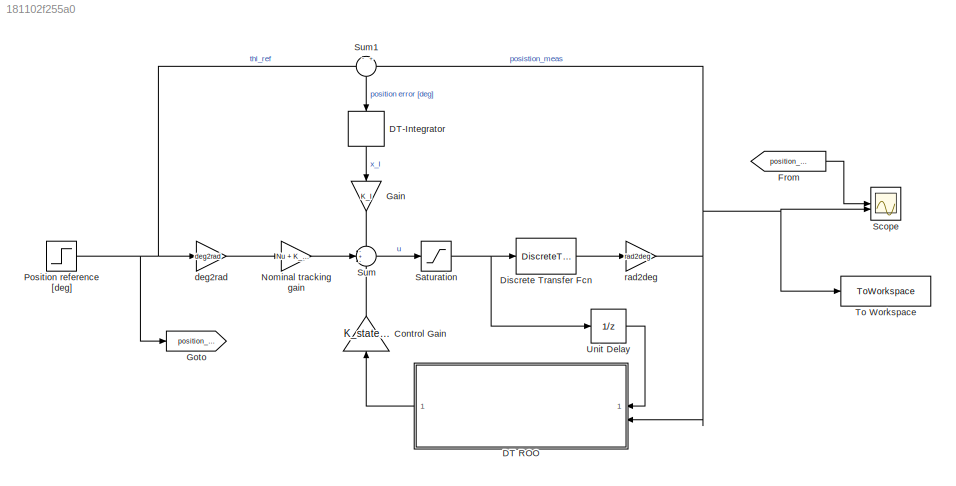
MODEL slx_181102f255a0
KIND model
CONFIG AbsTol = auto
CONFIG EnableMultiTasking = off
CONFIG FixedStep = auto
CONFIG MaxStep = auto
CONFIG MinStep = auto
CONFIG RelTol = 1e-3
CONFIG SampleTimeConstraint = Unconstrained
CONFIG SolverName = VariableStepDiscrete
CONFIG StartTime = 0.0
CONFIG StopTime = 15
BLOCK [Gain] Control Gain
  Gain = K_stateFB
  Multiplication = Matrix(K*u) (u vector)
  NameLocation = right
BLOCK [SubSystem] DT ROO
  ReferencedSubsystem = discrete_reduced_order_observer
BLOCK [DiscreteIntegrator] DT-Integrator
  ICPrevOutput = DiscIntNeverNeededParam
  ICPrevScaledInput = DiscIntNeverNeededParam
  InitialConditionSetting = Auto
  NameLocation = right
  SampleTime = 0.05
BLOCK [DiscreteTransferFcn] Discrete Transfer Fcn
  Denominator = sigmaD_tf_den
  InputPortMap = u0
  Numerator = sigmaD_tf_num
BLOCK [From] From
  GotoTag = position_ref
BLOCK [Gain] Gain
  Gain = K_I
  NameLocation = left
BLOCK [Goto] Goto
  GotoTag = position_ref
BLOCK [Gain] Nominal tracking gain
  Gain = Nu + K_stateFB * Nx
BLOCK [Step] Position reference [deg]
  After = 50
  SampleTime = Ts
BLOCK [Saturate] Saturation
  LowerLimit = -12
  UpperLimit = 12
BLOCK [Scope] Scope
  Floating = off
  NumInputPorts = 2
  ScopeSpecificationString = Simulink.scopes.TimeScopeBlockCfg('CurrentConfiguration', extmgr.ConfigurationSet(extmgr.Configuration('Core','General UI',true),extmgr.Configuration('Core','Source UI',true),extmgr.Configuration('Sources','WiredSimulink',true,'SampleTime','Ts'),extmgr.Configuration('Visuals','Time Domain',true,'SerializedDisplays',{struct('MinYLimReal','-12.13072','MaxYLimReal','109.17651','YLabelReal','','MinYLi...<+1536ch>
BLOCK [Sum] Sum
  Inputs = -+-
BLOCK [Sum] Sum1
  Inputs = -|+
  NameLocation = right
BLOCK [ToWorkspace] To Workspace
  FixptAsFi = on
  MaxDataPoints = inf
  SampleTime = -1
  SaveFormat = Timeseries
  VariableName = pos_measured
BLOCK [UnitDelay] Unit Delay
  HasFrameUpgradeWarning = on
  SampleTime = -1
BLOCK [Gain] deg2rad
  Gain = deg2rad
BLOCK [Gain] rad2deg
  Gain = rad2deg
LINE Control Gain:1 -> Sum:3
LINE DT ROO:1 -> Control Gain:1
LINE DT-Integrator:1 -> Gain:1
LINE Discrete Transfer Fcn:1 -> rad2deg:1
LINE From:1 -> Scope:1
LINE Gain:1 -> Sum:1
LINE Nominal tracking gain:1 -> Sum:2
NET Position reference [deg]:1 -> Goto:1, Sum1:1, deg2rad:1
NET Saturation:1 -> Discrete Transfer Fcn:1, Unit Delay:1
LINE Sum1:1 -> DT-Integrator:1
LINE Sum:1 -> Saturation:1
LINE Unit Delay:1 -> DT ROO:1
LINE deg2rad:1 -> Nominal tracking gain:1
NET rad2deg:1 -> DT ROO:2, Scope:2, Sum1:2, To Workspace:1
note: NET lines group one-source signal fan-out (src -> all destinations, sorted); 1:1 wires keep LINE
